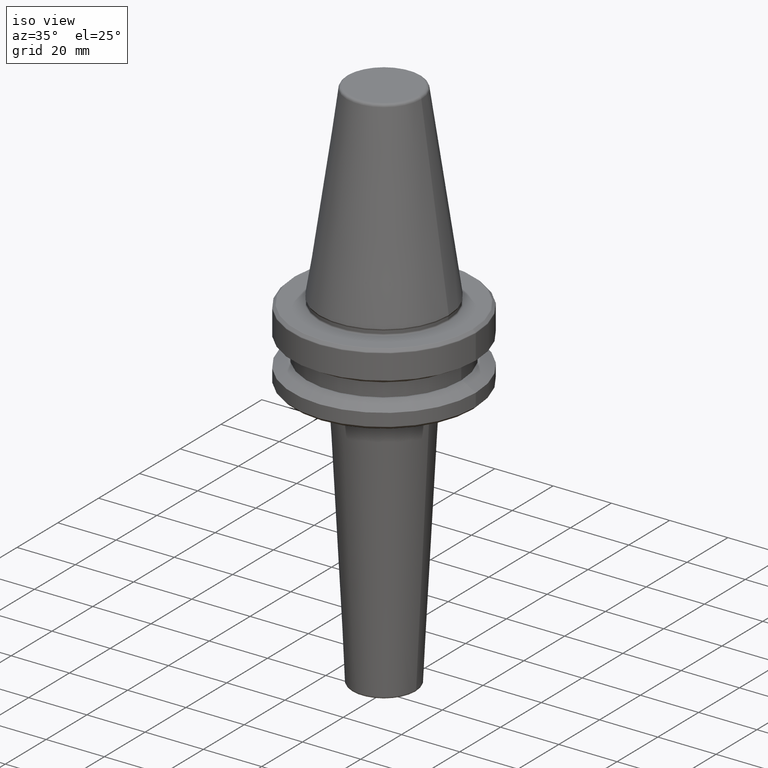
[diagram: clean part render]
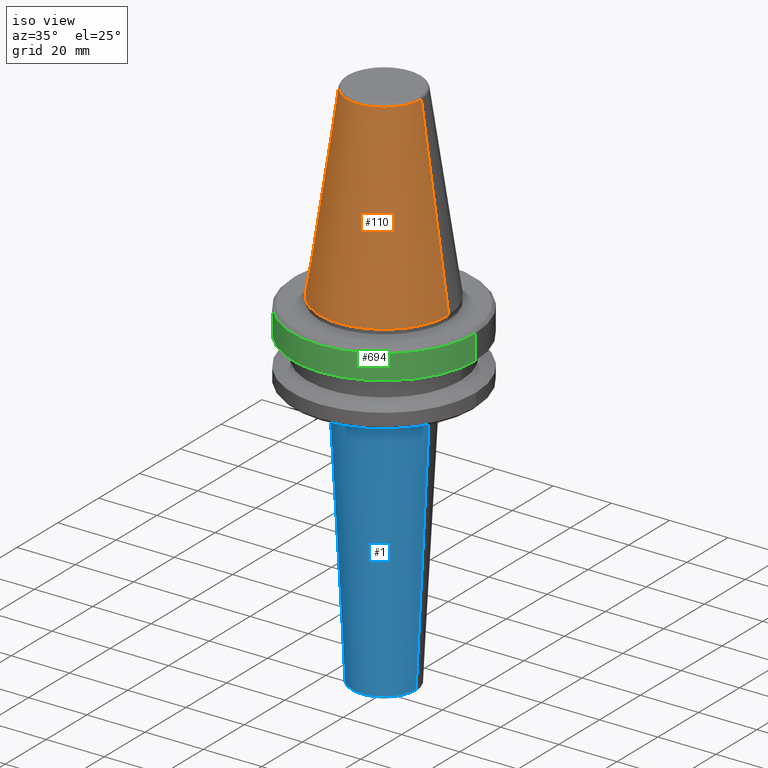
[diagram: same view with three faces highlighted in distinct colors, each labeled with its STEP entity id]
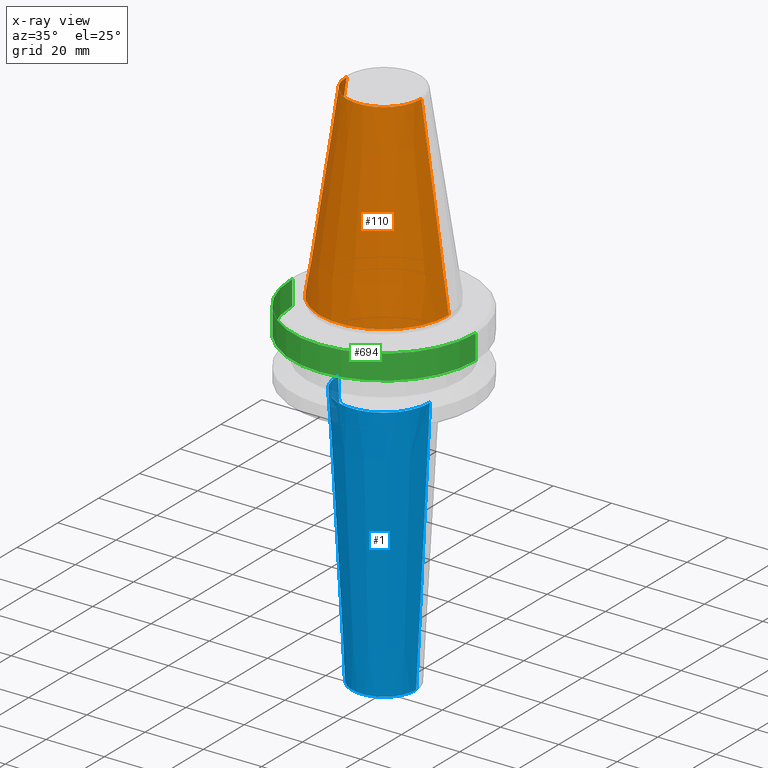
[diagram: x-ray of the same camera — body ghosted, the three highlighted faces saturated]
A machine part, iso view with three faces highlighted in distinct colors.
The next image is the same camera in x-ray (body ghosted, the three faces saturated) — at least one of them is partly hidden behind the body in this view.
Their STEP definitions:

[orange] entity #110 — the highlighted conical surface has half-angle 8.297 deg.
#5 = CARTESIAN_POINT ( 'NONE',  ( 12.81219950706223500, 1.569041911636106400E-015, 64.54430822726730800 ) ) ;
#73 = DIRECTION ( 'NONE',  ( -0.0000000000000000000, -0.0000000000000000000, -1.000000000000000000 ) ) ;
#110 = ADVANCED_FACE ( 'NONE', ( #394 ), #354, .T. ) ;
#115 = VECTOR ( 'NONE', #797, 1000.000000000000100 ) ;
#149 = LINE ( 'NONE', #191, #115 ) ;
#191 = CARTESIAN_POINT ( 'NONE',  ( 22.22500000000000100, 2.721777511104992800E-015, 0.0000000000000000000 ) ) ;
#276 = CARTESIAN_POINT ( 'NONE',  ( -22.22500000000000100, 2.721777511104992800E-015, 0.0000000000000000000 ) ) ;
#289 = ORIENTED_EDGE ( 'NONE', *, *, #555, .F. ) ;
#321 = VECTOR ( 'NONE', #361, 1000.000000000000100 ) ;
#354 = CONICAL_SURFACE ( 'NONE', #728, 22.22500000000000100, 0.1448138465474192700 ) ;
#361 = DIRECTION ( 'NONE',  ( -0.1443082272673072200, 0.0000000000000000000, -0.9895327864921744700 ) ) ;
#394 = FACE_OUTER_BOUND ( 'NONE', #1050, .T. ) ;
#409 = CIRCLE ( 'NONE', #473, 12.81219950706223700 ) ;
#473 = AXIS2_PLACEMENT_3D ( 'NONE', #664, #73, #723 ) ;
#490 = EDGE_CURVE ( 'NONE', #1078, #1154, #409, .T. ) ;
#526 = CARTESIAN_POINT ( 'NONE',  ( 0.0000000000000000000, 0.0000000000000000000, 0.0000000000000000000 ) ) ;
#532 = CARTESIAN_POINT ( 'NONE',  ( 22.22500000000000100, 0.0000000000000000000, 0.0000000000000000000 ) ) ;
#555 = EDGE_CURVE ( 'NONE', #1078, #865, #149, .T. ) ;
#589 = CARTESIAN_POINT ( 'NONE',  ( 0.0000000000000000000, 0.0000000000000000000, 0.0000000000000000000 ) ) ;
#598 = VERTEX_POINT ( 'NONE', #276 ) ;
#664 = CARTESIAN_POINT ( 'NONE',  ( 0.0000000000000000000, 0.0000000000000000000, 64.54430822726730800 ) ) ;
#687 = DIRECTION ( 'NONE',  ( -0.0000000000000000000, -0.0000000000000000000, -1.000000000000000000 ) ) ;
#723 = DIRECTION ( 'NONE',  ( -1.000000000000000000, 0.0000000000000000000, 0.0000000000000000000 ) ) ;
#728 = AXIS2_PLACEMENT_3D ( 'NONE', #526, #870, #1046 ) ;
#742 = ORIENTED_EDGE ( 'NONE', *, *, #1089, .T. ) ;
#797 = DIRECTION ( 'NONE',  ( 0.1443082272673072200, 1.767266086135366100E-017, -0.9895327864921744700 ) ) ;
#857 = LINE ( 'NONE', #1172, #321 ) ;
#865 = VERTEX_POINT ( 'NONE', #532 ) ;
#870 = DIRECTION ( 'NONE',  ( -0.0000000000000000000, -0.0000000000000000000, -1.000000000000000000 ) ) ;
#958 = EDGE_CURVE ( 'NONE', #865, #598, #1165, .T. ) ;
#974 = ORIENTED_EDGE ( 'NONE', *, *, #490, .T. ) ;
#1010 = AXIS2_PLACEMENT_3D ( 'NONE', #589, #687, #1209 ) ;
#1046 = DIRECTION ( 'NONE',  ( -1.000000000000000000, 0.0000000000000000000, 0.0000000000000000000 ) ) ;
#1050 = EDGE_LOOP ( 'NONE', ( #289, #974, #742, #1092 ) ) ;
#1078 = VERTEX_POINT ( 'NONE', #5 ) ;
#1089 = EDGE_CURVE ( 'NONE', #1154, #598, #857, .T. ) ;
#1092 = ORIENTED_EDGE ( 'NONE', *, *, #958, .F. ) ;
#1154 = VERTEX_POINT ( 'NONE', #1159 ) ;
#1159 = CARTESIAN_POINT ( 'NONE',  ( -12.81219950706223500, 0.0000000000000000000, 64.54430822726730800 ) ) ;
#1165 = CIRCLE ( 'NONE', #1010, 22.22500000000000100 ) ;
#1172 = CARTESIAN_POINT ( 'NONE',  ( -22.22500000000000100, 0.0000000000000000000, 0.0000000000000000000 ) ) ;
#1209 = DIRECTION ( 'NONE',  ( -1.000000000000000000, 0.0000000000000000000, 0.0000000000000000000 ) ) ;

[blue] entity #1 — the highlighted conical surface has half-angle 3 deg.
#1 = ADVANCED_FACE ( 'NONE', ( #459 ), #440, .T. ) ;
#30 = CIRCLE ( 'NONE', #1146, 11.03973197443175600 ) ;
#42 = LINE ( 'NONE', #1017, #52 ) ;
#48 = DIRECTION ( 'NONE',  ( -0.0000000000000000000, -0.0000000000000000000, 1.000000000000000000 ) ) ;
#52 = VECTOR ( 'NONE', #438, 1000.000000000000100 ) ;
#74 = CARTESIAN_POINT ( 'NONE',  ( 15.77459353724345800, 0.0000000000000000000, -28.89532808751404900 ) ) ;
#139 = AXIS2_PLACEMENT_3D ( 'NONE', #867, #956, #1128 ) ;
#217 = EDGE_CURVE ( 'NONE', #315, #429, #282, .T. ) ;
#270 = VECTOR ( 'NONE', #609, 1000.000000000000100 ) ;
#282 = LINE ( 'NONE', #887, #270 ) ;
#315 = VERTEX_POINT ( 'NONE', #853 ) ;
#319 = DIRECTION ( 'NONE',  ( -0.0000000000000000000, -0.0000000000000000000, 1.000000000000000000 ) ) ;
#429 = VERTEX_POINT ( 'NONE', #1032 ) ;
#438 = DIRECTION ( 'NONE',  ( 0.05233595624294394600, 0.0000000000000000000, 0.9986295347545739400 ) ) ;
#440 = CONICAL_SURFACE ( 'NONE', #1179, 15.87392347332284400, 0.05235987755982999400 ) ;
#459 = FACE_OUTER_BOUND ( 'NONE', #547, .T. ) ;
#547 = EDGE_LOOP ( 'NONE', ( #814, #916, #617, #564 ) ) ;
#564 = ORIENTED_EDGE ( 'NONE', *, *, #1000, .T. ) ;
#609 = DIRECTION ( 'NONE',  ( -0.05233595624294394600, 6.409306129323724000E-018, 0.9986295347545739400 ) ) ;
#617 = ORIENTED_EDGE ( 'NONE', *, *, #755, .T. ) ;
#645 = VERTEX_POINT ( 'NONE', #74 ) ;
#732 = CARTESIAN_POINT ( 'NONE',  ( 0.0000000000000000000, 0.0000000000000000000, -119.2418687649943800 ) ) ;
#755 = EDGE_CURVE ( 'NONE', #1166, #645, #42, .T. ) ;
#814 = ORIENTED_EDGE ( 'NONE', *, *, #217, .F. ) ;
#816 = EDGE_CURVE ( 'NONE', #315, #1166, #30, .T. ) ;
#852 = CIRCLE ( 'NONE', #139, 15.77459353724345800 ) ;
#853 = CARTESIAN_POINT ( 'NONE',  ( -11.03973197443175500, 1.351977242593253800E-015, -119.2418687649943800 ) ) ;
#867 = CARTESIAN_POINT ( 'NONE',  ( 0.0000000000000000000, 0.0000000000000000000, -28.89532808751404900 ) ) ;
#885 = DIRECTION ( 'NONE',  ( 1.000000000000000000, 0.0000000000000000000, 0.0000000000000000000 ) ) ;
#887 = CARTESIAN_POINT ( 'NONE',  ( -15.87392347332284400, 1.943994957151485700E-015, -27.00000000000000400 ) ) ;
#904 = CARTESIAN_POINT ( 'NONE',  ( 0.0000000000000000000, 0.0000000000000000000, -27.00000000000000400 ) ) ;
#916 = ORIENTED_EDGE ( 'NONE', *, *, #816, .T. ) ;
#917 = DIRECTION ( 'NONE',  ( 1.000000000000000000, 0.0000000000000000000, 0.0000000000000000000 ) ) ;
#956 = DIRECTION ( 'NONE',  ( -0.0000000000000000000, -0.0000000000000000000, -1.000000000000000000 ) ) ;
#987 = CARTESIAN_POINT ( 'NONE',  ( 11.03973197443175500, 0.0000000000000000000, -119.2418687649943800 ) ) ;
#1000 = EDGE_CURVE ( 'NONE', #645, #429, #852, .T. ) ;
#1017 = CARTESIAN_POINT ( 'NONE',  ( 15.87392347332284400, 0.0000000000000000000, -27.00000000000000400 ) ) ;
#1032 = CARTESIAN_POINT ( 'NONE',  ( -15.77459353724345800, 1.931830548323572700E-015, -28.89532808751404900 ) ) ;
#1128 = DIRECTION ( 'NONE',  ( -1.000000000000000000, 0.0000000000000000000, 0.0000000000000000000 ) ) ;
#1146 = AXIS2_PLACEMENT_3D ( 'NONE', #732, #319, #917 ) ;
#1166 = VERTEX_POINT ( 'NONE', #987 ) ;
#1179 = AXIS2_PLACEMENT_3D ( 'NONE', #904, #48, #885 ) ;

[green] entity #694 — the highlighted cylindrical surface (partial cylindrical patch) has radius 31.5 mm, axis along (-0, -0, -1).
#10 = LINE ( 'NONE', #1199, #414 ) ;
#20 = DIRECTION ( 'NONE',  ( -0.0000000000000000000, -0.0000000000000000000, -1.000000000000000000 ) ) ;
#28 = CARTESIAN_POINT ( 'NONE',  ( -31.50000000000000000, 3.857637417314162700E-015, -11.60014666881784400 ) ) ;
#60 = DIRECTION ( 'NONE',  ( -1.000000000000000000, 0.0000000000000000000, 0.0000000000000000000 ) ) ;
#62 = CYLINDRICAL_SURFACE ( 'NONE', #375, 31.50000000000000000 ) ;
#68 = CIRCLE ( 'NONE', #889, 31.50000000000000000 ) ;
#79 = VECTOR ( 'NONE', #1139, 1000.000000000000000 ) ;
#91 = FACE_OUTER_BOUND ( 'NONE', #579, .T. ) ;
#108 = CARTESIAN_POINT ( 'NONE',  ( 0.0000000000000000000, 0.0000000000000000000, -3.165685424949240100 ) ) ;
#134 = EDGE_CURVE ( 'NONE', #674, #996, #407, .T. ) ;
#135 = LINE ( 'NONE', #665, #79 ) ;
#148 = ORIENTED_EDGE ( 'NONE', *, *, #134, .T. ) ;
#227 = DIRECTION ( 'NONE',  ( -0.0000000000000000000, -0.0000000000000000000, -1.000000000000000000 ) ) ;
#257 = ORIENTED_EDGE ( 'NONE', *, *, #940, .F. ) ;
#300 = ORIENTED_EDGE ( 'NONE', *, *, #639, .T. ) ;
#316 = EDGE_CURVE ( 'NONE', #674, #1111, #10, .T. ) ;
#375 = AXIS2_PLACEMENT_3D ( 'NONE', #416, #871, #600 ) ;
#407 = CIRCLE ( 'NONE', #918, 31.50000000000000000 ) ;
#414 = VECTOR ( 'NONE', #1192, 1000.000000000000000 ) ;
#416 = CARTESIAN_POINT ( 'NONE',  ( 0.0000000000000000000, 0.0000000000000000000, 0.0000000000000000000 ) ) ;
#579 = EDGE_LOOP ( 'NONE', ( #1182, #148, #300, #257 ) ) ;
#600 = DIRECTION ( 'NONE',  ( -1.000000000000000000, 0.0000000000000000000, 0.0000000000000000000 ) ) ;
#636 = DIRECTION ( 'NONE',  ( -1.000000000000000000, 0.0000000000000000000, 0.0000000000000000000 ) ) ;
#639 = EDGE_CURVE ( 'NONE', #996, #1066, #135, .T. ) ;
#665 = CARTESIAN_POINT ( 'NONE',  ( -31.50000000000000000, 0.0000000000000000000, 0.0000000000000000000 ) ) ;
#674 = VERTEX_POINT ( 'NONE', #1113 ) ;
#694 = ADVANCED_FACE ( 'NONE', ( #91 ), #62, .T. ) ;
#871 = DIRECTION ( 'NONE',  ( -0.0000000000000000000, -0.0000000000000000000, -1.000000000000000000 ) ) ;
#889 = AXIS2_PLACEMENT_3D ( 'NONE', #944, #227, #636 ) ;
#918 = AXIS2_PLACEMENT_3D ( 'NONE', #108, #20, #60 ) ;
#940 = EDGE_CURVE ( 'NONE', #1111, #1066, #68, .T. ) ;
#944 = CARTESIAN_POINT ( 'NONE',  ( 0.0000000000000000000, 0.0000000000000000000, -11.60014666881784400 ) ) ;
#953 = CARTESIAN_POINT ( 'NONE',  ( -31.50000000000000000, 0.0000000000000000000, -3.165685424949240100 ) ) ;
#996 = VERTEX_POINT ( 'NONE', #953 ) ;
#1014 = CARTESIAN_POINT ( 'NONE',  ( 31.50000000000000000, 0.0000000000000000000, -11.60014666881784400 ) ) ;
#1066 = VERTEX_POINT ( 'NONE', #28 ) ;
#1111 = VERTEX_POINT ( 'NONE', #1014 ) ;
#1113 = CARTESIAN_POINT ( 'NONE',  ( 31.50000000000000000, 3.857637417314162700E-015, -3.165685424949240100 ) ) ;
#1139 = DIRECTION ( 'NONE',  ( -0.0000000000000000000, -0.0000000000000000000, -1.000000000000000000 ) ) ;
#1182 = ORIENTED_EDGE ( 'NONE', *, *, #316, .F. ) ;
#1192 = DIRECTION ( 'NONE',  ( -0.0000000000000000000, -0.0000000000000000000, -1.000000000000000000 ) ) ;
#1199 = CARTESIAN_POINT ( 'NONE',  ( 31.50000000000000000, 3.857637417314162700E-015, 0.0000000000000000000 ) ) ;